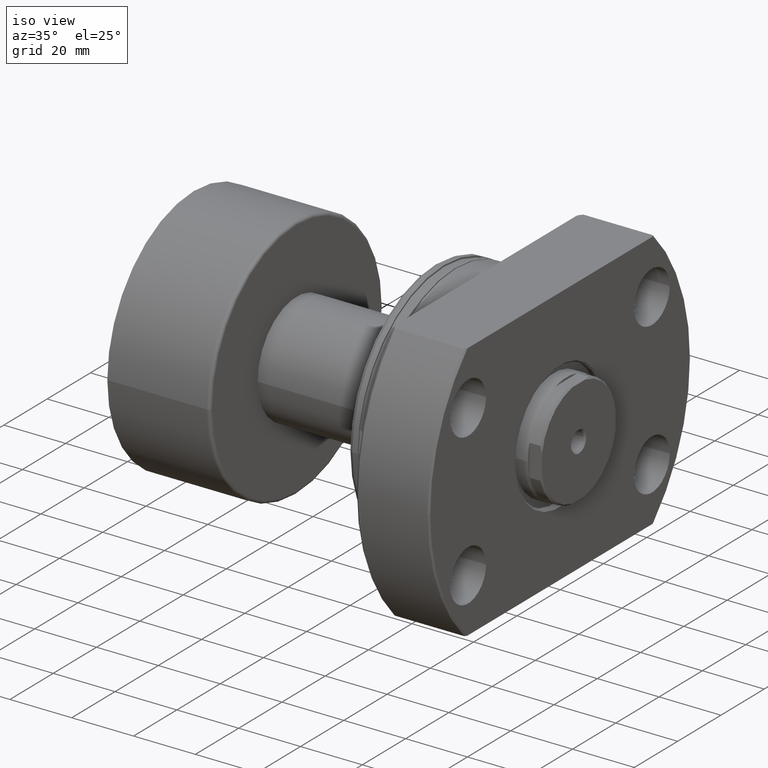
[diagram: clean part render]
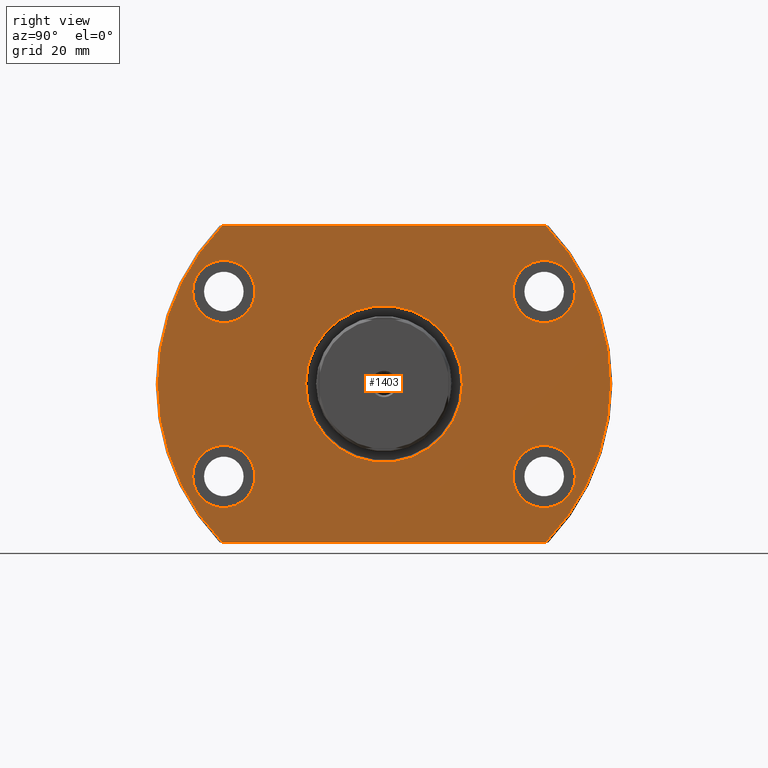
[diagram: tour spotlight — one face highlighted and labeled with its STEP entity id]
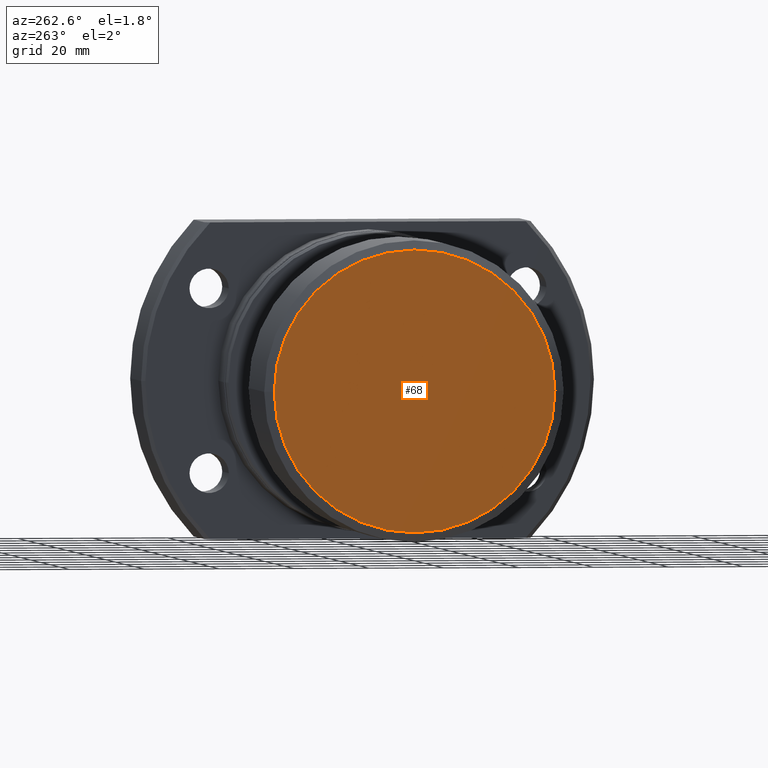
[diagram: tour spotlight — one face highlighted and labeled with its STEP entity id]
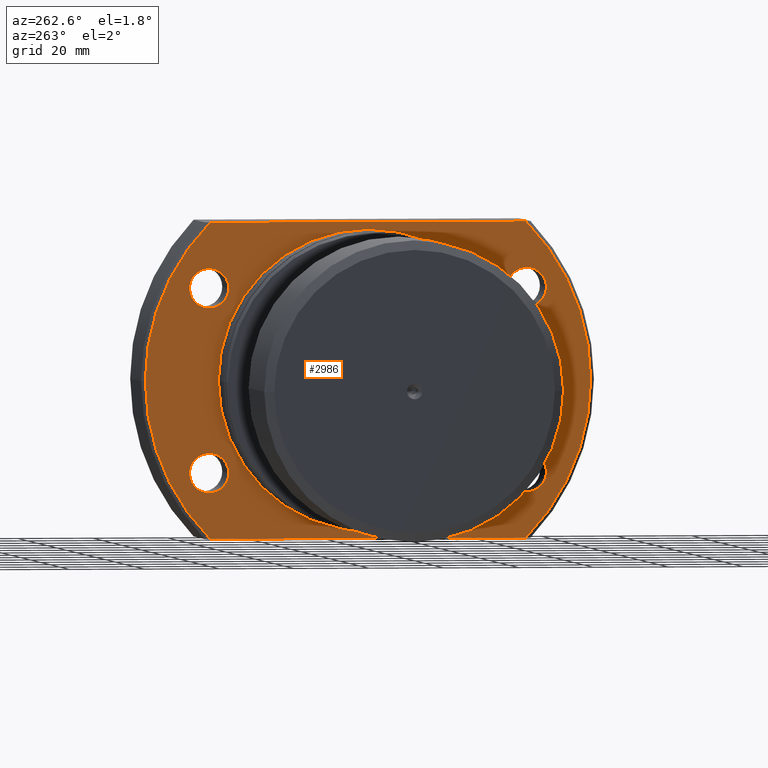
[diagram: tour spotlight — one face highlighted and labeled with its STEP entity id]
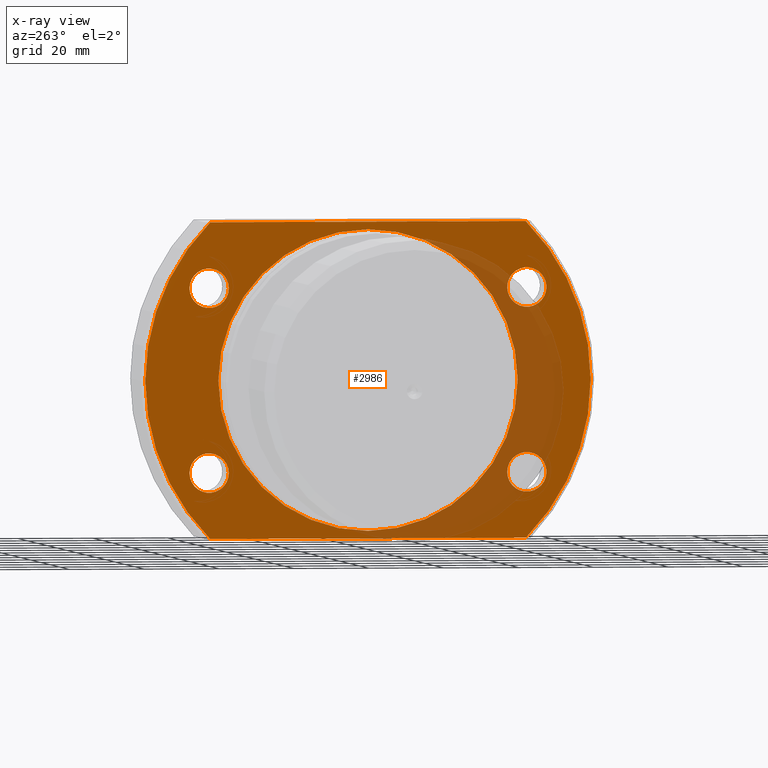
[diagram: x-ray of the same camera — body ghosted, this tour face saturated]
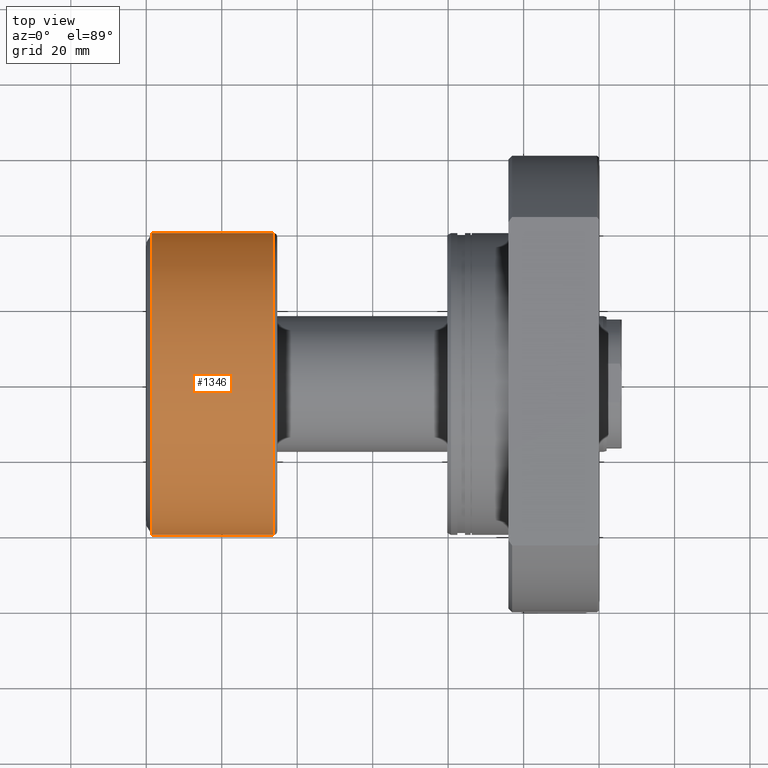
[diagram: tour spotlight — one face highlighted and labeled with its STEP entity id]
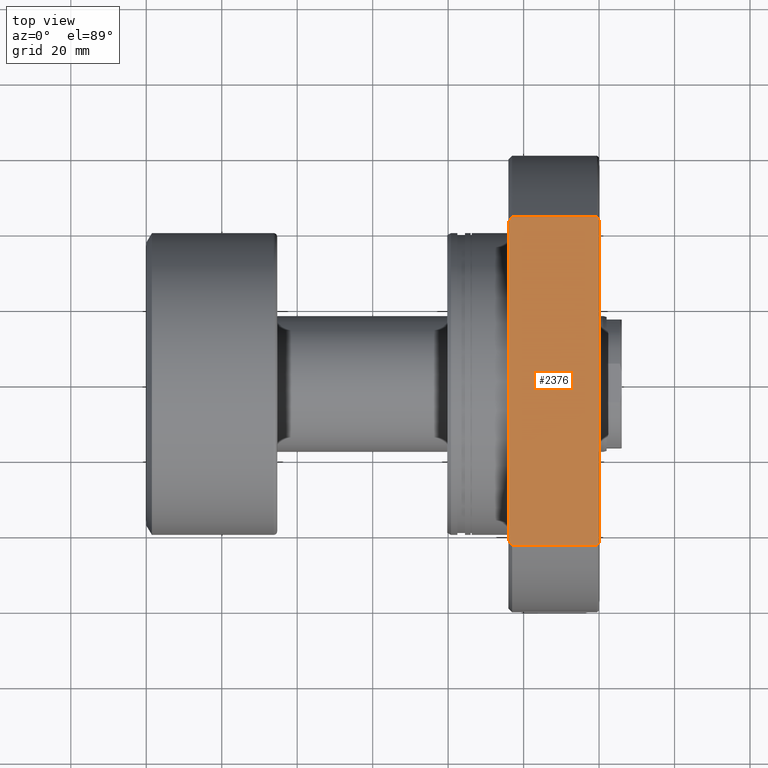
[diagram: tour spotlight — one face highlighted and labeled with its STEP entity id]
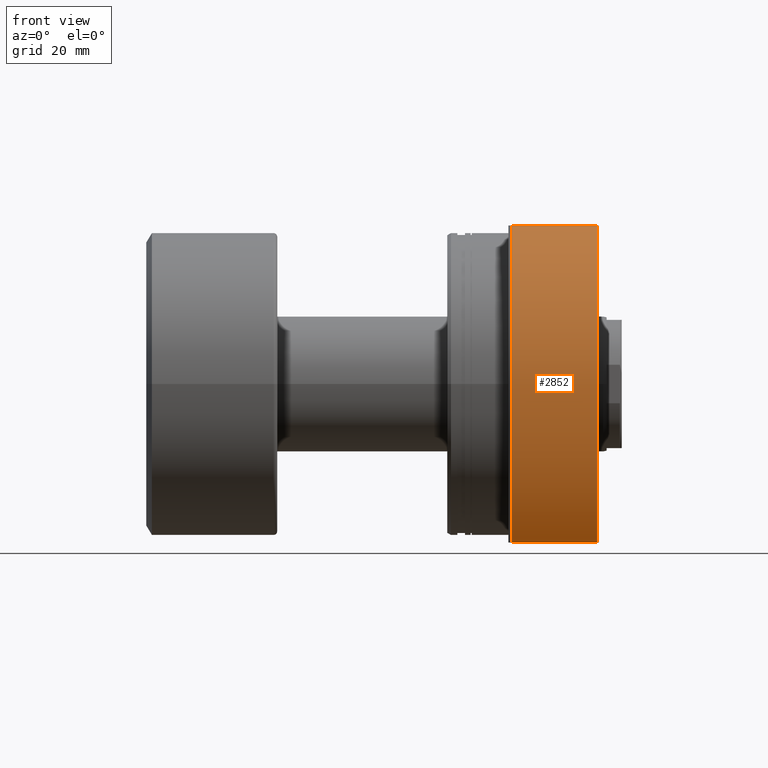
[diagram: tour spotlight — one face highlighted and labeled with its STEP entity id]
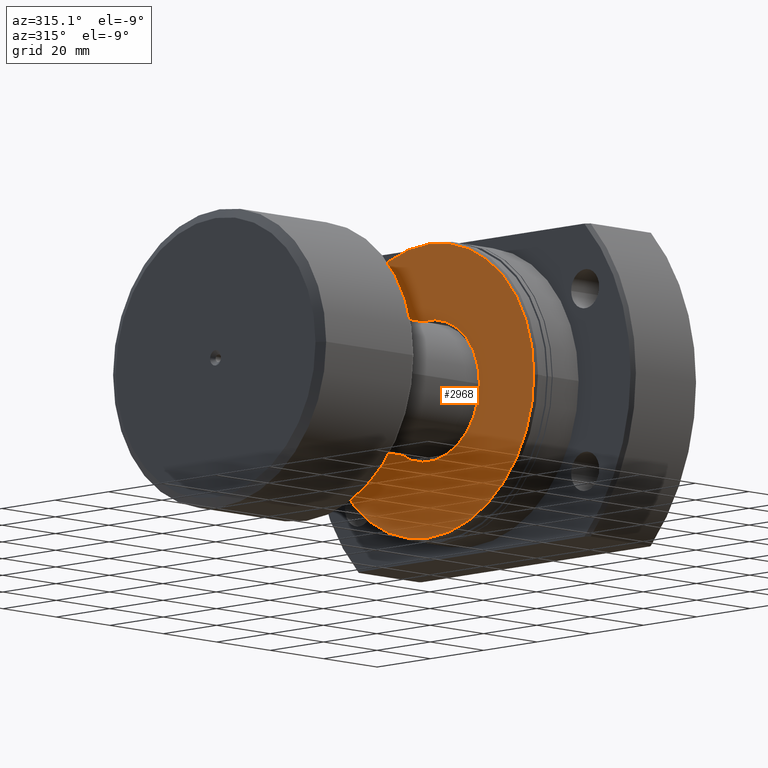
[diagram: tour spotlight — one face highlighted and labeled with its STEP entity id]
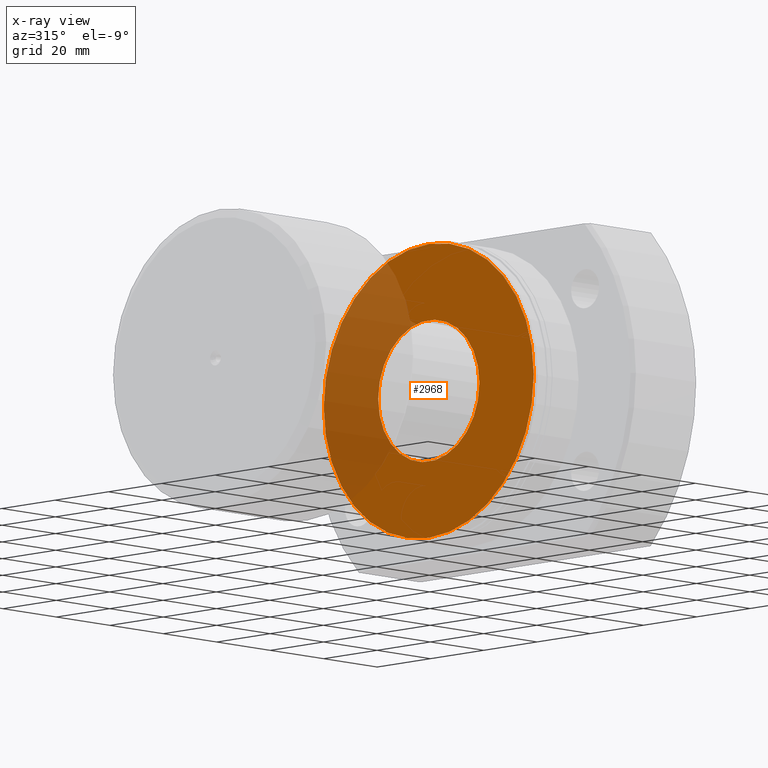
[diagram: x-ray of the same camera — body ghosted, this tour face saturated]
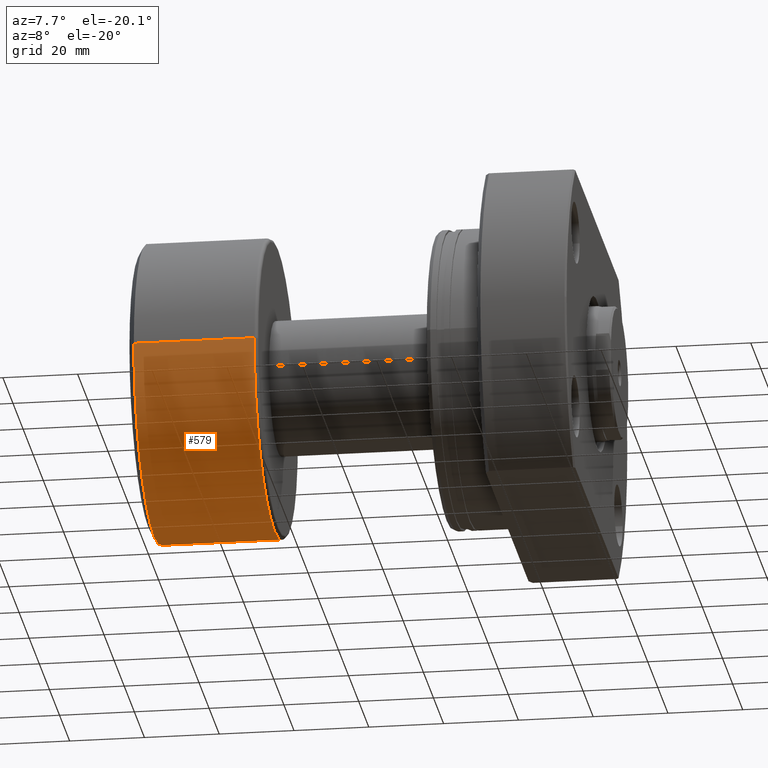
[diagram: tour spotlight — one face highlighted and labeled with its STEP entity id]
A machine part: a face-by-face anatomy tour. The part has 103 B-rep faces; the first image is the clean iso view, then the 8 largest visible faces are spotlighted one at a time (largest first), each with its STEP entity span.

Face 1 — right view, entity #1403. In plain terms, the highlighted planar face has unit normal (-1, -0, 0).
Definition (entity closure, byte-faithful):
#3 = VECTOR ( 'NONE', #1677, 1000.000000000000000 ) ;
#12 = AXIS2_PLACEMENT_3D ( 'NONE', #1807, #2316, #1068 ) ;
#16 = CARTESIAN_POINT ( 'NONE',  ( 40.20000000000000284, 1.922695474661343877E-15, 0.000000000000000000 ) ) ;
#78 = AXIS2_PLACEMENT_3D ( 'NONE', #16, #84, #1059 ) ;
#83 = CARTESIAN_POINT ( 'NONE',  ( 40.20000000000122498, 42.44999999999883755, 24.50000000000000355 ) ) ;
#84 = DIRECTION ( 'NONE',  ( 1.000000000000000000, 4.782824563834189405E-17, -0.000000000000000000 ) ) ;
#92 = VERTEX_POINT ( 'NONE', #2164 ) ;
#139 = ORIENTED_EDGE ( 'NONE', *, *, #3062, .F. ) ;
#152 = CARTESIAN_POINT ( 'NONE',  ( 40.20000000000000284, 43.54595273960703850, 42.00000000000000711 ) ) ;
#180 = ORIENTED_EDGE ( 'NONE', *, *, #1776, .F. ) ;
#185 = ORIENTED_EDGE ( 'NONE', *, *, #890, .T. ) ;
#194 = CARTESIAN_POINT ( 'NONE',  ( 40.20000000000000284, -1.160359376889872993E-12, 0.000000000000000000 ) ) ;
#210 = CARTESIAN_POINT ( 'NONE',  ( 40.20000000000000284, 42.84857057125708479, 42.00000000000000711 ) ) ;
#217 = ORIENTED_EDGE ( 'NONE', *, *, #2673, .T. ) ;
#267 = FACE_BOUND ( 'NONE', #804, .T. ) ;
#294 = ORIENTED_EDGE ( 'NONE', *, *, #1938, .F. ) ;
#303 = FACE_BOUND ( 'NONE', #2604, .T. ) ;
#377 = CIRCLE ( 'NONE', #3193, 8.250000000000007105 ) ;
#452 = VERTEX_POINT ( 'NONE', #1932 ) ;
#457 = ORIENTED_EDGE ( 'NONE', *, *, #1916, .F. ) ;
#499 = DIRECTION ( 'NONE',  ( 2.859665366458733885E-14, 1.000000000000000000, 0.000000000000000000 ) ) ;
#504 = EDGE_CURVE ( 'NONE', #1164, #1594, #669, .T. ) ;
#509 = PLANE ( 'NONE',  #2402 ) ;
#592 = DIRECTION ( 'NONE',  ( 0.000000000000000000, 1.000000000000000000, 0.000000000000000000 ) ) ;
#619 = AXIS2_PLACEMENT_3D ( 'NONE', #1860, #2582, #1082 ) ;
#622 = DIRECTION ( 'NONE',  ( 1.000000000000000000, 4.782824563834189405E-17, -0.000000000000000000 ) ) ;
#669 = LINE ( 'NONE', #152, #3 ) ;
#778 = CIRCLE ( 'NONE', #619, 8.250000000000007105 ) ;
#780 = VERTEX_POINT ( 'NONE', #2577 ) ;
#782 = AXIS2_PLACEMENT_3D ( 'NONE', #3167, #1665, #1472 ) ;
#796 = CARTESIAN_POINT ( 'NONE',  ( 40.19999999999853202, -50.70000000000117524, 24.50000000000000355 ) ) ;
#802 = DIRECTION ( 'NONE',  ( 1.000000000000000000, -2.889302749805715994E-14, -3.155443620884047222E-30 ) ) ;
#804 = EDGE_LOOP ( 'NONE', ( #875, #2418 ) ) ;
#827 = CARTESIAN_POINT ( 'NONE',  ( 40.19999999999900808, -34.20000000000117524, 24.50000000000000355 ) ) ;
#850 = CARTESIAN_POINT ( 'NONE',  ( 40.20000000000000284, -42.84857057125709190, 42.00000000000000711 ) ) ;
#864 = VERTEX_POINT ( 'NONE', #1012 ) ;
#875 = ORIENTED_EDGE ( 'NONE', *, *, #1584, .F. ) ;
#883 = ORIENTED_EDGE ( 'NONE', *, *, #1033, .T. ) ;
#885 = CIRCLE ( 'NONE', #1031, 8.250000000000000000 ) ;
#889 = VECTOR ( 'NONE', #2046, 1000.000000000000000 ) ;
#890 = EDGE_CURVE ( 'NONE', #780, #1698, #1247, .T. ) ;
#934 = CIRCLE ( 'NONE', #782, 20.74999999999876010 ) ;
#973 = ORIENTED_EDGE ( 'NONE', *, *, #1863, .F. ) ;
#981 = CIRCLE ( 'NONE', #2250, 60.00000000000000000 ) ;
#994 = LINE ( 'NONE', #1011, #889 ) ;
#1011 = CARTESIAN_POINT ( 'NONE',  ( 40.20000000000000284, -60.00000000000000000, -42.00000000000000711 ) ) ;
#1012 = CARTESIAN_POINT ( 'NONE',  ( 40.20000000000146656, 50.69999999999883755, 24.50000000000000355 ) ) ;
#1031 = AXIS2_PLACEMENT_3D ( 'NONE', #83, #1105, #1823 ) ;
#1033 = EDGE_CURVE ( 'NONE', #1698, #780, #934, .T. ) ;
#1048 = CARTESIAN_POINT ( 'NONE',  ( 40.20000000000000284, -20.75000000000112266, 2.541142108230753141E-15 ) ) ;
#1059 = DIRECTION ( 'NONE',  ( 0.000000000000000000, 1.000000000000000000, 0.000000000000000000 ) ) ;
#1068 = DIRECTION ( 'NONE',  ( 2.859665366458736410E-14, 1.000000000000000000, 0.000000000000000000 ) ) ;
#1082 = DIRECTION ( 'NONE',  ( 2.859665366458733885E-14, 1.000000000000000000, 0.000000000000000000 ) ) ;
#1105 = DIRECTION ( 'NONE',  ( 1.000000000000000000, -2.886466111666351885E-14, 0.000000000000000000 ) ) ;
#1164 = VERTEX_POINT ( 'NONE', #850 ) ;
#1193 = CIRCLE ( 'NONE', #3012, 8.250000000000007105 ) ;
#1228 = VERTEX_POINT ( 'NONE', #1981 ) ;
#1247 = CIRCLE ( 'NONE', #1948, 20.74999999999876010 ) ;
#1292 = FACE_BOUND ( 'NONE', #2175, .T. ) ;
#1303 = CARTESIAN_POINT ( 'NONE',  ( 40.20000000000000284, 1.922695474661343877E-15, 0.000000000000000000 ) ) ;
#1317 = CARTESIAN_POINT ( 'NONE',  ( 40.19999999999877360, -42.45000000000117524, -24.49999999999999645 ) ) ;
#1350 = VERTEX_POINT ( 'NONE', #796 ) ;
#1369 = ORIENTED_EDGE ( 'NONE', *, *, #504, .F. ) ;
#1403 = ADVANCED_FACE ( 'NONE', ( #303, #1292, #267, #1756, #2727, #2270 ), #509, .F. ) ;
#1472 = DIRECTION ( 'NONE',  ( 0.000000000000000000, -1.000000000000000000, 0.000000000000000000 ) ) ;
#1473 = CIRCLE ( 'NONE', #78, 60.00000000000000000 ) ;
#1492 = CARTESIAN_POINT ( 'NONE',  ( 40.20000000000000284, -60.00000000000000000, 0.000000000000000000 ) ) ;
#1502 = VERTEX_POINT ( 'NONE', #1686 ) ;
#1528 = AXIS2_PLACEMENT_3D ( 'NONE', #1317, #802, #499 ) ;
#1532 = EDGE_CURVE ( 'NONE', #92, #452, #1843, .T. ) ;
#1584 = EDGE_CURVE ( 'NONE', #2466, #1350, #2340, .T. ) ;
#1594 = VERTEX_POINT ( 'NONE', #210 ) ;
#1654 = DIRECTION ( 'NONE',  ( -1.000000000000000000, -4.782824563834189405E-17, 0.000000000000000000 ) ) ;
#1665 = DIRECTION ( 'NONE',  ( -1.000000000000000000, -4.782824563834189405E-17, 0.000000000000000000 ) ) ;
#1677 = DIRECTION ( 'NONE',  ( -0.000000000000000000, 1.000000000000000000, 0.000000000000000000 ) ) ;
#1686 = CARTESIAN_POINT ( 'NONE',  ( 40.20000000000099050, 34.19999999999883045, -24.49999999999999645 ) ) ;
#1698 = VERTEX_POINT ( 'NONE', #1048 ) ;
#1728 = CIRCLE ( 'NONE', #12, 8.250000000000000000 ) ;
#1740 = DIRECTION ( 'NONE',  ( 2.859665366458733885E-14, 1.000000000000000000, 0.000000000000000000 ) ) ;
#1756 = FACE_BOUND ( 'NONE', #2368, .T. ) ;
#1760 = DIRECTION ( 'NONE',  ( 1.000000000000000000, -2.889302749805715994E-14, -3.155443620884047222E-30 ) ) ;
#1776 = EDGE_CURVE ( 'NONE', #1502, #2480, #1193, .T. ) ;
#1798 = CIRCLE ( 'NONE', #1528, 8.250000000000007105 ) ;
#1807 = CARTESIAN_POINT ( 'NONE',  ( 40.19999999999877360, -42.45000000000117524, 24.50000000000000355 ) ) ;
#1823 = DIRECTION ( 'NONE',  ( 2.859665366458736410E-14, 1.000000000000000000, 0.000000000000000000 ) ) ;
#1843 = CIRCLE ( 'NONE', #1944, 60.00000000000000000 ) ;
#1860 = CARTESIAN_POINT ( 'NONE',  ( 40.20000000000122498, 42.44999999999883755, -24.49999999999999645 ) ) ;
#1863 = EDGE_CURVE ( 'NONE', #2122, #864, #2695, .T. ) ;
#1911 = CARTESIAN_POINT ( 'NONE',  ( 40.20000000000099050, 34.19999999999883755, 24.50000000000000355 ) ) ;
#1916 = EDGE_CURVE ( 'NONE', #864, #2122, #885, .T. ) ;
#1928 = DIRECTION ( 'NONE',  ( 0.000000000000000000, -1.000000000000000000, 0.000000000000000000 ) ) ;
#1932 = CARTESIAN_POINT ( 'NONE',  ( 40.20000000000000284, -42.84857057125708479, -42.00000000000000711 ) ) ;
#1938 = EDGE_CURVE ( 'NONE', #2480, #1502, #778, .T. ) ;
#1944 = AXIS2_PLACEMENT_3D ( 'NONE', #1303, #2790, #2902 ) ;
#1948 = AXIS2_PLACEMENT_3D ( 'NONE', #194, #1654, #1928 ) ;
#1981 = CARTESIAN_POINT ( 'NONE',  ( 40.19999999999900808, -34.20000000000116813, -24.49999999999999645 ) ) ;
#2030 = DIRECTION ( 'NONE',  ( 2.859665366458736410E-14, 1.000000000000000000, 0.000000000000000000 ) ) ;
#2046 = DIRECTION ( 'NONE',  ( -4.782824563834189405E-17, 1.000000000000000000, -0.000000000000000000 ) ) ;
#2122 = VERTEX_POINT ( 'NONE', #1911 ) ;
#2164 = CARTESIAN_POINT ( 'NONE',  ( 40.20000000000000284, -60.00000000000000000, 0.000000000000000000 ) ) ;
#2175 = EDGE_LOOP ( 'NONE', ( #457, #973 ) ) ;
#2194 = VERTEX_POINT ( 'NONE', #2469 ) ;
#2224 = CARTESIAN_POINT ( 'NONE',  ( 40.20000000000122498, 42.44999999999883755, -24.49999999999999645 ) ) ;
#2250 = AXIS2_PLACEMENT_3D ( 'NONE', #2622, #622, #592 ) ;
#2270 = FACE_OUTER_BOUND ( 'NONE', #2871, .T. ) ;
#2276 = DIRECTION ( 'NONE',  ( 2.859665366458733885E-14, 1.000000000000000000, 0.000000000000000000 ) ) ;
#2289 = DIRECTION ( 'NONE',  ( 1.000000000000000000, -2.889302749805715994E-14, -3.155443620884047222E-30 ) ) ;
#2316 = DIRECTION ( 'NONE',  ( 1.000000000000000000, -2.889302749805715994E-14, -3.155443620884047222E-30 ) ) ;
#2320 = DIRECTION ( 'NONE',  ( 1.000000000000000000, -2.889302749805715994E-14, -3.155443620884047222E-30 ) ) ;
#2340 = CIRCLE ( 'NONE', #2511, 8.250000000000000000 ) ;
#2342 = DIRECTION ( 'NONE',  ( 2.859665366458736410E-14, 1.000000000000000000, 0.000000000000000000 ) ) ;
#2368 = EDGE_LOOP ( 'NONE', ( #2765, #139 ) ) ;
#2395 = CARTESIAN_POINT ( 'NONE',  ( 40.19999999999877360, -42.45000000000117524, -24.49999999999999645 ) ) ;
#2402 = AXIS2_PLACEMENT_3D ( 'NONE', #1492, #2763, #2482 ) ;
#2418 = ORIENTED_EDGE ( 'NONE', *, *, #2462, .F. ) ;
#2450 = AXIS2_PLACEMENT_3D ( 'NONE', #2730, #2486, #2030 ) ;
#2462 = EDGE_CURVE ( 'NONE', #1350, #2466, #1728, .T. ) ;
#2466 = VERTEX_POINT ( 'NONE', #827 ) ;
#2469 = CARTESIAN_POINT ( 'NONE',  ( 40.19999999999853202, -50.70000000000118234, -24.49999999999999645 ) ) ;
#2480 = VERTEX_POINT ( 'NONE', #3075 ) ;
#2482 = DIRECTION ( 'NONE',  ( 4.782824563834189405E-17, -1.000000000000000000, 0.000000000000000000 ) ) ;
#2486 = DIRECTION ( 'NONE',  ( 1.000000000000000000, -2.886466111666351885E-14, 0.000000000000000000 ) ) ;
#2511 = AXIS2_PLACEMENT_3D ( 'NONE', #2706, #2320, #2342 ) ;
#2534 = ORIENTED_EDGE ( 'NONE', *, *, #3200, .T. ) ;
#2577 = CARTESIAN_POINT ( 'NONE',  ( 40.20000000000000284, 20.74999999999760547, 0.000000000000000000 ) ) ;
#2582 = DIRECTION ( 'NONE',  ( 1.000000000000000000, -2.889302749805715994E-14, -3.155443620884047222E-30 ) ) ;
#2595 = VERTEX_POINT ( 'NONE', #3165 ) ;
#2604 = EDGE_LOOP ( 'NONE', ( #185, #883 ) ) ;
#2622 = CARTESIAN_POINT ( 'NONE',  ( 40.20000000000000284, 1.922695474661343877E-15, 0.000000000000000000 ) ) ;
#2651 = EDGE_CURVE ( 'NONE', #1228, #2194, #377, .T. ) ;
#2673 = EDGE_CURVE ( 'NONE', #452, #2595, #994, .T. ) ;
#2691 = ORIENTED_EDGE ( 'NONE', *, *, #2883, .T. ) ;
#2695 = CIRCLE ( 'NONE', #2450, 8.250000000000000000 ) ;
#2706 = CARTESIAN_POINT ( 'NONE',  ( 40.19999999999877360, -42.45000000000117524, 24.50000000000000355 ) ) ;
#2727 = FACE_BOUND ( 'NONE', #3039, .T. ) ;
#2730 = CARTESIAN_POINT ( 'NONE',  ( 40.20000000000122498, 42.44999999999883755, 24.50000000000000355 ) ) ;
#2763 = DIRECTION ( 'NONE',  ( -1.000000000000000000, -4.782824563834189405E-17, 0.000000000000000000 ) ) ;
#2765 = ORIENTED_EDGE ( 'NONE', *, *, #2651, .F. ) ;
#2790 = DIRECTION ( 'NONE',  ( 1.000000000000000000, 4.782824563834189405E-17, -0.000000000000000000 ) ) ;
#2871 = EDGE_LOOP ( 'NONE', ( #1369, #2691, #2877, #217, #2534 ) ) ;
#2877 = ORIENTED_EDGE ( 'NONE', *, *, #1532, .T. ) ;
#2883 = EDGE_CURVE ( 'NONE', #1164, #92, #981, .T. ) ;
#2902 = DIRECTION ( 'NONE',  ( 0.000000000000000000, 1.000000000000000000, 0.000000000000000000 ) ) ;
#3012 = AXIS2_PLACEMENT_3D ( 'NONE', #2224, #1760, #1740 ) ;
#3039 = EDGE_LOOP ( 'NONE', ( #294, #180 ) ) ;
#3062 = EDGE_CURVE ( 'NONE', #2194, #1228, #1798, .T. ) ;
#3075 = CARTESIAN_POINT ( 'NONE',  ( 40.20000000000146656, 50.69999999999884466, -24.49999999999999645 ) ) ;
#3165 = CARTESIAN_POINT ( 'NONE',  ( 40.20000000000000284, 42.84857057125709190, -42.00000000000000711 ) ) ;
#3167 = CARTESIAN_POINT ( 'NONE',  ( 40.20000000000000284, -1.160359376889872993E-12, 0.000000000000000000 ) ) ;
#3193 = AXIS2_PLACEMENT_3D ( 'NONE', #2395, #2289, #2276 ) ;
#3200 = EDGE_CURVE ( 'NONE', #2595, #1594, #1473, .T. ) ;

Face 2 — auxiliary view, entity #68. In plain terms, the highlighted planar face has unit normal (-1, -0, 0).
Definition (entity closure, byte-faithful):
#68 = ADVANCED_FACE ( 'NONE', ( #2087, #2283 ), #3055, .T. ) ;
#163 = VERTEX_POINT ( 'NONE', #1270 ) ;
#225 = VERTEX_POINT ( 'NONE', #3197 ) ;
#312 = DIRECTION ( 'NONE',  ( 1.069542322069070885E-17, -1.000000000000000000, 0.000000000000000000 ) ) ;
#336 = DIRECTION ( 'NONE',  ( 1.000000000000000000, 1.069542322069065801E-17, 0.000000000000000000 ) ) ;
#467 = AXIS2_PLACEMENT_3D ( 'NONE', #1599, #2547, #1338 ) ;
#521 = EDGE_CURVE ( 'NONE', #163, #1189, #2291, .T. ) ;
#596 = CARTESIAN_POINT ( 'NONE',  ( 2.095673563013336780E-15, 0.000000000000000000, 0.000000000000000000 ) ) ;
#604 = ORIENTED_EDGE ( 'NONE', *, *, #2770, .T. ) ;
#626 = CIRCLE ( 'NONE', #1624, 2.075000000000007283 ) ;
#690 = EDGE_LOOP ( 'NONE', ( #1547, #604 ) ) ;
#791 = CARTESIAN_POINT ( 'NONE',  ( 2.095673563013336780E-15, 0.000000000000000000, 0.000000000000000000 ) ) ;
#929 = AXIS2_PLACEMENT_3D ( 'NONE', #2709, #995, #3214 ) ;
#995 = DIRECTION ( 'NONE',  ( -1.000000000000000000, -1.069542322069065801E-17, -0.000000000000000000 ) ) ;
#1090 = CIRCLE ( 'NONE', #2006, 2.075000000000007283 ) ;
#1129 = DIRECTION ( 'NONE',  ( 1.069542322069066725E-17, -1.000000000000000000, 0.000000000000000000 ) ) ;
#1153 = DIRECTION ( 'NONE',  ( -1.000000000000000000, -1.069542322069065801E-17, -0.000000000000000000 ) ) ;
#1178 = EDGE_LOOP ( 'NONE', ( #3118, #3000 ) ) ;
#1189 = VERTEX_POINT ( 'NONE', #3146 ) ;
#1270 = CARTESIAN_POINT ( 'NONE',  ( 3.790268755250773542E-15, 37.49999999999999289, 0.000000000000000000 ) ) ;
#1338 = DIRECTION ( 'NONE',  ( 1.069542322069065801E-17, -1.000000000000000000, 0.000000000000000000 ) ) ;
#1547 = ORIENTED_EDGE ( 'NONE', *, *, #2460, .T. ) ;
#1570 = CIRCLE ( 'NONE', #2003, 37.49999999999999289 ) ;
#1599 = CARTESIAN_POINT ( 'NONE',  ( 2.095673563013336780E-15, 2.241411568884037022E-32, 0.000000000000000000 ) ) ;
#1609 = VERTEX_POINT ( 'NONE', #1645 ) ;
#1624 = AXIS2_PLACEMENT_3D ( 'NONE', #596, #336, #2073 ) ;
#1645 = CARTESIAN_POINT ( 'NONE',  ( 2.095673563013336780E-15, 0.000000000000000000, 2.075000000000007283 ) ) ;
#1804 = DIRECTION ( 'NONE',  ( 1.000000000000000000, 1.069542322069065801E-17, 0.000000000000000000 ) ) ;
#1885 = CARTESIAN_POINT ( 'NONE',  ( 4.191347126026673560E-15, 4.482823137768074044E-32, 0.000000000000000000 ) ) ;
#2003 = AXIS2_PLACEMENT_3D ( 'NONE', #1885, #1153, #1129 ) ;
#2006 = AXIS2_PLACEMENT_3D ( 'NONE', #791, #1804, #312 ) ;
#2073 = DIRECTION ( 'NONE',  ( 1.069542322069070885E-17, -1.000000000000000000, 0.000000000000000000 ) ) ;
#2087 = FACE_BOUND ( 'NONE', #690, .T. ) ;
#2283 = FACE_OUTER_BOUND ( 'NONE', #1178, .T. ) ;
#2291 = CIRCLE ( 'NONE', #929, 37.49999999999999289 ) ;
#2460 = EDGE_CURVE ( 'NONE', #1609, #225, #626, .T. ) ;
#2499 = EDGE_CURVE ( 'NONE', #1189, #163, #1570, .T. ) ;
#2547 = DIRECTION ( 'NONE',  ( -1.000000000000000000, -1.069542322069065801E-17, 0.000000000000000000 ) ) ;
#2709 = CARTESIAN_POINT ( 'NONE',  ( 4.191347126026673560E-15, 4.482823137768074044E-32, 0.000000000000000000 ) ) ;
#2770 = EDGE_CURVE ( 'NONE', #225, #1609, #1090, .T. ) ;
#3000 = ORIENTED_EDGE ( 'NONE', *, *, #2499, .T. ) ;
#3055 = PLANE ( 'NONE',  #467 ) ;
#3118 = ORIENTED_EDGE ( 'NONE', *, *, #521, .T. ) ;
#3146 = CARTESIAN_POINT ( 'NONE',  ( 4.592425496802573578E-15, -37.49999999999999289, 4.745506346695992513E-15 ) ) ;
#3197 = CARTESIAN_POINT ( 'NONE',  ( 2.095673563013336780E-15, 2.541142108230766946E-16, -2.075000000000007283 ) ) ;
#3214 = DIRECTION ( 'NONE',  ( 1.069542322069066725E-17, -1.000000000000000000, 0.000000000000000000 ) ) ;

Face 3 — auxiliary view, entity #2986. An x-ray twin of the same camera follows (body ghosted, this face saturated) — the face is partly hidden behind the body. In plain terms, the highlighted planar face has unit normal (1, 0, 0).
Definition (entity closure, byte-faithful):
#15 = EDGE_CURVE ( 'NONE', #2428, #1362, #567, .T. ) ;
#31 = CARTESIAN_POINT ( 'NONE',  ( 16.20000000000000284, 42.44999999999953388, -24.49999999999999645 ) ) ;
#35 = CARTESIAN_POINT ( 'NONE',  ( 16.20000000000000284, 7.748175793411387157E-16, 0.000000000000000000 ) ) ;
#36 = DIRECTION ( 'NONE',  ( 1.000000000000000000, 4.782824563834189405E-17, -0.000000000000000000 ) ) ;
#64 = DIRECTION ( 'NONE',  ( 1.000000000000000000, 4.782824563834189405E-17, -0.000000000000000000 ) ) ;
#72 = CIRCLE ( 'NONE', #674, 39.99999999999999289 ) ;
#75 = AXIS2_PLACEMENT_3D ( 'NONE', #2031, #2077, #2718 ) ;
#106 = VERTEX_POINT ( 'NONE', #2422 ) ;
#124 = CARTESIAN_POINT ( 'NONE',  ( 16.20000000000000639, -47.70000000000047180, -24.49999999999999645 ) ) ;
#134 = ORIENTED_EDGE ( 'NONE', *, *, #1123, .T. ) ;
#188 = VERTEX_POINT ( 'NONE', #2688 ) ;
#235 = VERTEX_POINT ( 'NONE', #945 ) ;
#241 = FACE_BOUND ( 'NONE', #734, .T. ) ;
#281 = EDGE_LOOP ( 'NONE', ( #2238, #2121 ) ) ;
#315 = AXIS2_PLACEMENT_3D ( 'NONE', #2457, #36, #1479 ) ;
#323 = CARTESIAN_POINT ( 'NONE',  ( 16.20000000000000284, 42.44999999999953388, 24.50000000000000355 ) ) ;
#349 = EDGE_CURVE ( 'NONE', #2406, #1266, #671, .T. ) ;
#422 = FACE_BOUND ( 'NONE', #450, .T. ) ;
#438 = CARTESIAN_POINT ( 'NONE',  ( 16.20000000000000639, -39.99999999999999289, -42.00000000000000711 ) ) ;
#450 = EDGE_LOOP ( 'NONE', ( #1566, #1128 ) ) ;
#459 = EDGE_LOOP ( 'NONE', ( #1140, #2872, #1054, #1623, #858 ) ) ;
#466 = EDGE_CURVE ( 'NONE', #1861, #597, #1996, .T. ) ;
#485 = ORIENTED_EDGE ( 'NONE', *, *, #1487, .T. ) ;
#567 = CIRCLE ( 'NONE', #315, 5.249999999999997335 ) ;
#574 = VECTOR ( 'NONE', #2781, 1000.000000000000000 ) ;
#585 = DIRECTION ( 'NONE',  ( 0.000000000000000000, 1.000000000000000000, 0.000000000000000000 ) ) ;
#588 = DIRECTION ( 'NONE',  ( 1.000000000000000000, 4.782824563834189405E-17, -0.000000000000000000 ) ) ;
#597 = VERTEX_POINT ( 'NONE', #1368 ) ;
#611 = ORIENTED_EDGE ( 'NONE', *, *, #15, .T. ) ;
#658 = CARTESIAN_POINT ( 'NONE',  ( 16.20000000000000639, -42.45000000000047180, 24.50000000000000355 ) ) ;
#671 = CIRCLE ( 'NONE', #3013, 5.249999999999997335 ) ;
#674 = AXIS2_PLACEMENT_3D ( 'NONE', #1388, #2603, #2892 ) ;
#681 = DIRECTION ( 'NONE',  ( 1.000000000000000000, 4.782824563834189405E-17, -0.000000000000000000 ) ) ;
#714 = LINE ( 'NONE', #438, #574 ) ;
#722 = DIRECTION ( 'NONE',  ( 0.000000000000000000, 1.000000000000000000, 0.000000000000000000 ) ) ;
#734 = EDGE_LOOP ( 'NONE', ( #134, #2223 ) ) ;
#828 = DIRECTION ( 'NONE',  ( 1.000000000000000000, 4.782824563834189405E-17, -0.000000000000000000 ) ) ;
#858 = ORIENTED_EDGE ( 'NONE', *, *, #466, .F. ) ;
#877 = DIRECTION ( 'NONE',  ( 0.000000000000000000, 1.000000000000000000, 0.000000000000000000 ) ) ;
#879 = EDGE_LOOP ( 'NONE', ( #1640, #485 ) ) ;
#925 = FACE_BOUND ( 'NONE', #281, .T. ) ;
#945 = CARTESIAN_POINT ( 'NONE',  ( 16.19999999999999929, 42.14558102577294108, 42.00000000000000711 ) ) ;
#996 = VERTEX_POINT ( 'NONE', #2435 ) ;
#1008 = CARTESIAN_POINT ( 'NONE',  ( 16.19999999999999929, 39.99999999999999289, 0.000000000000000000 ) ) ;
#1034 = CARTESIAN_POINT ( 'NONE',  ( 16.20000000000000639, -47.70000000000047180, 24.50000000000000355 ) ) ;
#1047 = CIRCLE ( 'NONE', #2617, 5.249999999999997335 ) ;
#1054 = ORIENTED_EDGE ( 'NONE', *, *, #2869, .F. ) ;
#1067 = CARTESIAN_POINT ( 'NONE',  ( 16.20000000000000639, -39.99999999999999289, 42.00000000000000711 ) ) ;
#1123 = EDGE_CURVE ( 'NONE', #1480, #106, #72, .T. ) ;
#1128 = ORIENTED_EDGE ( 'NONE', *, *, #1990, .T. ) ;
#1134 = EDGE_CURVE ( 'NONE', #1169, #597, #714, .T. ) ;
#1137 = AXIS2_PLACEMENT_3D ( 'NONE', #3163, #1903, #2112 ) ;
#1140 = ORIENTED_EDGE ( 'NONE', *, *, #1543, .F. ) ;
#1160 = DIRECTION ( 'NONE',  ( -4.782824563834189405E-17, 1.000000000000000000, 0.000000000000000000 ) ) ;
#1169 = VERTEX_POINT ( 'NONE', #2609 ) ;
#1234 = CARTESIAN_POINT ( 'NONE',  ( 16.20000000000000284, 37.19999999999954099, 24.50000000000000355 ) ) ;
#1266 = VERTEX_POINT ( 'NONE', #124 ) ;
#1362 = VERTEX_POINT ( 'NONE', #1234 ) ;
#1368 = CARTESIAN_POINT ( 'NONE',  ( 16.20000000000000639, -42.14558102577294108, -42.00000000000000711 ) ) ;
#1388 = CARTESIAN_POINT ( 'NONE',  ( 16.20000000000000284, 7.748175793411387157E-16, 0.000000000000000000 ) ) ;
#1452 = EDGE_CURVE ( 'NONE', #1266, #2406, #1669, .T. ) ;
#1466 = AXIS2_PLACEMENT_3D ( 'NONE', #31, #2057, #722 ) ;
#1471 = CIRCLE ( 'NONE', #75, 59.49999999999994316 ) ;
#1479 = DIRECTION ( 'NONE',  ( 0.000000000000000000, 1.000000000000000000, 0.000000000000000000 ) ) ;
#1480 = VERTEX_POINT ( 'NONE', #1008 ) ;
#1487 = EDGE_CURVE ( 'NONE', #996, #2498, #1514, .T. ) ;
#1496 = CARTESIAN_POINT ( 'NONE',  ( 16.20000000000000639, -42.14558102577294108, 42.00000000000000711 ) ) ;
#1514 = CIRCLE ( 'NONE', #2096, 5.249999999999997335 ) ;
#1543 = EDGE_CURVE ( 'NONE', #235, #1861, #1688, .T. ) ;
#1545 = DIRECTION ( 'NONE',  ( 1.000000000000000000, 4.782824563834189405E-17, -0.000000000000000000 ) ) ;
#1566 = ORIENTED_EDGE ( 'NONE', *, *, #2593, .T. ) ;
#1612 = CARTESIAN_POINT ( 'NONE',  ( 16.20000000000000639, -37.20000000000047891, -24.49999999999999645 ) ) ;
#1623 = ORIENTED_EDGE ( 'NONE', *, *, #1134, .T. ) ;
#1629 = CIRCLE ( 'NONE', #2612, 5.249999999999997335 ) ;
#1640 = ORIENTED_EDGE ( 'NONE', *, *, #2314, .T. ) ;
#1669 = CIRCLE ( 'NONE', #2105, 5.249999999999997335 ) ;
#1680 = VECTOR ( 'NONE', #2379, 1000.000000000000000 ) ;
#1688 = LINE ( 'NONE', #1067, #1680 ) ;
#1754 = DIRECTION ( 'NONE',  ( 0.000000000000000000, 1.000000000000000000, 0.000000000000000000 ) ) ;
#1769 = DIRECTION ( 'NONE',  ( 1.000000000000000000, 4.782824563834189405E-17, -0.000000000000000000 ) ) ;
#1844 = CARTESIAN_POINT ( 'NONE',  ( 16.20000000000000639, -42.45000000000047180, 24.50000000000000355 ) ) ;
#1861 = VERTEX_POINT ( 'NONE', #1496 ) ;
#1903 = DIRECTION ( 'NONE',  ( 1.000000000000000000, 4.782824563834189405E-17, -0.000000000000000000 ) ) ;
#1990 = EDGE_CURVE ( 'NONE', #2309, #188, #2396, .T. ) ;
#1996 = CIRCLE ( 'NONE', #1137, 59.49999999999994316 ) ;
#2031 = CARTESIAN_POINT ( 'NONE',  ( 16.20000000000000284, 7.748175793411387157E-16, 0.000000000000000000 ) ) ;
#2057 = DIRECTION ( 'NONE',  ( 1.000000000000000000, 4.782824563834189405E-17, -0.000000000000000000 ) ) ;
#2062 = CIRCLE ( 'NONE', #2919, 39.99999999999999289 ) ;
#2077 = DIRECTION ( 'NONE',  ( 1.000000000000000000, 4.782824563834189405E-17, -0.000000000000000000 ) ) ;
#2086 = CARTESIAN_POINT ( 'NONE',  ( 16.20000000000000284, 47.69999999999953388, 24.50000000000000355 ) ) ;
#2096 = AXIS2_PLACEMENT_3D ( 'NONE', #3041, #828, #585 ) ;
#2105 = AXIS2_PLACEMENT_3D ( 'NONE', #2990, #1769, #2742 ) ;
#2112 = DIRECTION ( 'NONE',  ( -5.831003280594314730E-17, 1.000000000000000000, 0.000000000000000000 ) ) ;
#2121 = ORIENTED_EDGE ( 'NONE', *, *, #1452, .T. ) ;
#2134 = ORIENTED_EDGE ( 'NONE', *, *, #3182, .T. ) ;
#2172 = DIRECTION ( 'NONE',  ( 1.000000000000000000, 4.782824563834189405E-17, -0.000000000000000000 ) ) ;
#2177 = DIRECTION ( 'NONE',  ( 1.000000000000000000, 4.782824563834189405E-17, -0.000000000000000000 ) ) ;
#2189 = CARTESIAN_POINT ( 'NONE',  ( 16.20000000000000639, -42.45000000000047180, -24.49999999999999645 ) ) ;
#2215 = VERTEX_POINT ( 'NONE', #2234 ) ;
#2223 = ORIENTED_EDGE ( 'NONE', *, *, #3179, .T. ) ;
#2234 = CARTESIAN_POINT ( 'NONE',  ( 16.19999999999999929, 59.49999999999994316, 0.000000000000000000 ) ) ;
#2238 = ORIENTED_EDGE ( 'NONE', *, *, #349, .T. ) ;
#2308 = DIRECTION ( 'NONE',  ( 0.000000000000000000, 1.000000000000000000, 0.000000000000000000 ) ) ;
#2309 = VERTEX_POINT ( 'NONE', #1034 ) ;
#2314 = EDGE_CURVE ( 'NONE', #2498, #996, #2853, .T. ) ;
#2379 = DIRECTION ( 'NONE',  ( 4.782824563834189405E-17, -1.000000000000000000, 0.000000000000000000 ) ) ;
#2396 = CIRCLE ( 'NONE', #2653, 5.249999999999997335 ) ;
#2406 = VERTEX_POINT ( 'NONE', #1612 ) ;
#2422 = CARTESIAN_POINT ( 'NONE',  ( 16.20000000000000639, -39.99999999999999289, 4.898587196589412237E-15 ) ) ;
#2428 = VERTEX_POINT ( 'NONE', #2086 ) ;
#2429 = FACE_BOUND ( 'NONE', #2830, .T. ) ;
#2435 = CARTESIAN_POINT ( 'NONE',  ( 16.20000000000000284, 37.19999999999954099, -24.49999999999999645 ) ) ;
#2456 = FACE_BOUND ( 'NONE', #879, .T. ) ;
#2457 = CARTESIAN_POINT ( 'NONE',  ( 16.20000000000000284, 42.44999999999953388, 24.50000000000000355 ) ) ;
#2473 = PLANE ( 'NONE',  #3076 ) ;
#2478 = CARTESIAN_POINT ( 'NONE',  ( 16.20000000000000284, 47.69999999999953388, -24.49999999999999645 ) ) ;
#2498 = VERTEX_POINT ( 'NONE', #2478 ) ;
#2537 = DIRECTION ( 'NONE',  ( -8.673617379884036705E-17, 1.000000000000000000, 0.000000000000000000 ) ) ;
#2562 = AXIS2_PLACEMENT_3D ( 'NONE', #2631, #3104, #2870 ) ;
#2593 = EDGE_CURVE ( 'NONE', #188, #2309, #1629, .T. ) ;
#2603 = DIRECTION ( 'NONE',  ( 1.000000000000000000, 4.782824563834189405E-17, -0.000000000000000000 ) ) ;
#2609 = CARTESIAN_POINT ( 'NONE',  ( 16.19999999999999929, 42.14558102577294108, -42.00000000000000711 ) ) ;
#2612 = AXIS2_PLACEMENT_3D ( 'NONE', #658, #2177, #2854 ) ;
#2617 = AXIS2_PLACEMENT_3D ( 'NONE', #323, #64, #2308 ) ;
#2631 = CARTESIAN_POINT ( 'NONE',  ( 16.20000000000000284, 7.748175793411387157E-16, 0.000000000000000000 ) ) ;
#2653 = AXIS2_PLACEMENT_3D ( 'NONE', #1844, #588, #877 ) ;
#2674 = FACE_OUTER_BOUND ( 'NONE', #459, .T. ) ;
#2688 = CARTESIAN_POINT ( 'NONE',  ( 16.20000000000000639, -37.20000000000047891, 24.50000000000000355 ) ) ;
#2718 = DIRECTION ( 'NONE',  ( -5.831003280594314730E-17, 1.000000000000000000, 0.000000000000000000 ) ) ;
#2742 = DIRECTION ( 'NONE',  ( 0.000000000000000000, 1.000000000000000000, 0.000000000000000000 ) ) ;
#2757 = CIRCLE ( 'NONE', #2562, 59.49999999999994316 ) ;
#2781 = DIRECTION ( 'NONE',  ( 4.782824563834189405E-17, -1.000000000000000000, 0.000000000000000000 ) ) ;
#2830 = EDGE_LOOP ( 'NONE', ( #611, #2134 ) ) ;
#2853 = CIRCLE ( 'NONE', #1466, 5.249999999999997335 ) ;
#2854 = DIRECTION ( 'NONE',  ( 0.000000000000000000, 1.000000000000000000, 0.000000000000000000 ) ) ;
#2869 = EDGE_CURVE ( 'NONE', #1169, #2215, #2757, .T. ) ;
#2870 = DIRECTION ( 'NONE',  ( -5.831003280594314730E-17, 1.000000000000000000, 0.000000000000000000 ) ) ;
#2872 = ORIENTED_EDGE ( 'NONE', *, *, #3212, .F. ) ;
#2892 = DIRECTION ( 'NONE',  ( -8.673617379884036705E-17, 1.000000000000000000, 0.000000000000000000 ) ) ;
#2919 = AXIS2_PLACEMENT_3D ( 'NONE', #35, #1545, #2537 ) ;
#2933 = CARTESIAN_POINT ( 'NONE',  ( 16.20000000000000639, -39.99999999999999289, 0.000000000000000000 ) ) ;
#2986 = ADVANCED_FACE ( 'NONE', ( #2429, #422, #925, #2456, #241, #2674 ), #2473, .F. ) ;
#2990 = CARTESIAN_POINT ( 'NONE',  ( 16.20000000000000639, -42.45000000000047180, -24.49999999999999645 ) ) ;
#3013 = AXIS2_PLACEMENT_3D ( 'NONE', #2189, #681, #1754 ) ;
#3041 = CARTESIAN_POINT ( 'NONE',  ( 16.20000000000000284, 42.44999999999953388, -24.49999999999999645 ) ) ;
#3076 = AXIS2_PLACEMENT_3D ( 'NONE', #2933, #2172, #1160 ) ;
#3104 = DIRECTION ( 'NONE',  ( 1.000000000000000000, 4.782824563834189405E-17, -0.000000000000000000 ) ) ;
#3163 = CARTESIAN_POINT ( 'NONE',  ( 16.20000000000000284, 7.748175793411387157E-16, 0.000000000000000000 ) ) ;
#3179 = EDGE_CURVE ( 'NONE', #106, #1480, #2062, .T. ) ;
#3182 = EDGE_CURVE ( 'NONE', #1362, #2428, #1047, .T. ) ;
#3212 = EDGE_CURVE ( 'NONE', #2215, #235, #1471, .T. ) ;

Face 4 — top view, entity #1346. In plain terms, the highlighted cylindrical surface (partial cylindrical patch) has radius 40 mm, axis along (-1, -0, -0).
Definition (entity closure, byte-faithful):
#6 = FACE_OUTER_BOUND ( 'NONE', #1373, .T. ) ;
#25 = DIRECTION ( 'NONE',  ( -1.000000000000000000, -1.069542322069065801E-17, -0.000000000000000000 ) ) ;
#125 = CIRCLE ( 'NONE', #1148, 39.99999999999999289 ) ;
#146 = EDGE_CURVE ( 'NONE', #2793, #2141, #2491, .T. ) ;
#177 = VECTOR ( 'NONE', #944, 1000.000000000000000 ) ;
#560 = ORIENTED_EDGE ( 'NONE', *, *, #2999, .T. ) ;
#632 = DIRECTION ( 'NONE',  ( -1.000000000000000000, -1.069542322069065801E-17, -0.000000000000000000 ) ) ;
#644 = CARTESIAN_POINT ( 'NONE',  ( 1.500000000000004663, 1.604313483103603400E-17, 0.000000000000000000 ) ) ;
#724 = AXIS2_PLACEMENT_3D ( 'NONE', #1278, #1524, #3028 ) ;
#785 = CARTESIAN_POINT ( 'NONE',  ( 1.500000000000004219, 39.99999999999999289, 0.000000000000000000 ) ) ;
#811 = VERTEX_POINT ( 'NONE', #785 ) ;
#919 = DIRECTION ( 'NONE',  ( 1.084202172485504588E-17, -1.000000000000000000, 0.000000000000000000 ) ) ;
#944 = DIRECTION ( 'NONE',  ( -1.000000000000000000, -1.069542322069065801E-17, -0.000000000000000000 ) ) ;
#1001 = CYLINDRICAL_SURFACE ( 'NONE', #724, 39.99999999999999289 ) ;
#1039 = EDGE_CURVE ( 'NONE', #2793, #1945, #1087, .T. ) ;
#1087 = CIRCLE ( 'NONE', #2610, 39.99999999999999289 ) ;
#1148 = AXIS2_PLACEMENT_3D ( 'NONE', #644, #632, #919 ) ;
#1215 = ORIENTED_EDGE ( 'NONE', *, *, #2627, .F. ) ;
#1216 = DIRECTION ( 'NONE',  ( -1.000000000000000000, -1.069542322069065801E-17, -0.000000000000000000 ) ) ;
#1245 = CARTESIAN_POINT ( 'NONE',  ( 4.278169288276262587E-16, -39.99999999999999289, 0.000000000000000000 ) ) ;
#1278 = CARTESIAN_POINT ( 'NONE',  ( 0.000000000000000000, 0.000000000000000000, 0.000000000000000000 ) ) ;
#1321 = CARTESIAN_POINT ( 'NONE',  ( 33.70000000000000284, -39.99999999999999289, 0.000000000000000000 ) ) ;
#1346 = ADVANCED_FACE ( 'NONE', ( #6 ), #1001, .T. ) ;
#1373 = EDGE_LOOP ( 'NONE', ( #1610, #560, #1215, #2646 ) ) ;
#1453 = LINE ( 'NONE', #2197, #177 ) ;
#1524 = DIRECTION ( 'NONE',  ( -1.000000000000000000, -1.069542322069065801E-17, -0.000000000000000000 ) ) ;
#1610 = ORIENTED_EDGE ( 'NONE', *, *, #1039, .T. ) ;
#1945 = VERTEX_POINT ( 'NONE', #3100 ) ;
#2141 = VERTEX_POINT ( 'NONE', #2928 ) ;
#2197 = CARTESIAN_POINT ( 'NONE',  ( -4.278169288276262587E-16, 39.99999999999999289, 4.898587196589412237E-15 ) ) ;
#2468 = CARTESIAN_POINT ( 'NONE',  ( 33.70000000000000284, 3.604357625372751759E-16, 0.000000000000000000 ) ) ;
#2491 = LINE ( 'NONE', #1245, #2744 ) ;
#2610 = AXIS2_PLACEMENT_3D ( 'NONE', #2468, #1216, #2681 ) ;
#2627 = EDGE_CURVE ( 'NONE', #2141, #811, #125, .T. ) ;
#2646 = ORIENTED_EDGE ( 'NONE', *, *, #146, .F. ) ;
#2681 = DIRECTION ( 'NONE',  ( 0.000000000000000000, -1.000000000000000000, 0.000000000000000000 ) ) ;
#2744 = VECTOR ( 'NONE', #25, 1000.000000000000000 ) ;
#2793 = VERTEX_POINT ( 'NONE', #1321 ) ;
#2928 = CARTESIAN_POINT ( 'NONE',  ( 1.500000000000005107, -39.99999999999999289, 4.898587196589412237E-15 ) ) ;
#2999 = EDGE_CURVE ( 'NONE', #1945, #811, #1453, .T. ) ;
#3028 = DIRECTION ( 'NONE',  ( 1.069542322069065801E-17, -1.000000000000000000, 0.000000000000000000 ) ) ;
#3100 = CARTESIAN_POINT ( 'NONE',  ( 33.70000000000000284, 39.99999999999999289, 4.898587196589412237E-15 ) ) ;

Face 5 — top view, entity #2376. In plain terms, the highlighted planar face has unit normal (0, 0, 1).
Definition (entity closure, byte-faithful):
#3 = VECTOR ( 'NONE', #1677, 1000.000000000000000 ) ;
#43 = CARTESIAN_POINT ( 'NONE',  ( -4.857225732735059864E-13, 43.54595273960703139, 42.00000000000000000 ) ) ;
#44 = CARTESIAN_POINT ( 'NONE',  ( 16.53144698496875975, -42.61350898229063233, 42.00000000000000711 ) ) ;
#71 = ORIENTED_EDGE ( 'NONE', *, *, #1237, .T. ) ;
#152 = CARTESIAN_POINT ( 'NONE',  ( 40.20000000000000284, 43.54595273960703850, 42.00000000000000711 ) ) ;
#182 = ORIENTED_EDGE ( 'NONE', *, *, #1575, .T. ) ;
#198 = VERTEX_POINT ( 'NONE', #1847 ) ;
#210 = CARTESIAN_POINT ( 'NONE',  ( 40.20000000000000284, 42.84857057125708479, 42.00000000000000711 ) ) ;
#232 = B_SPLINE_CURVE_WITH_KNOTS ( 'NONE', 3,
 ( #1183, #2346, #1250, #2650 ),
 .UNSPECIFIED., .F., .F.,
 ( 4, 4 ),
 ( 0.1639571914734299363, 0.1648217309186877921 ),
 .UNSPECIFIED. ) ;
#235 = VERTEX_POINT ( 'NONE', #945 ) ;
#332 = ORIENTED_EDGE ( 'NONE', *, *, #504, .T. ) ;
#359 = CARTESIAN_POINT ( 'NONE',  ( -4.857225732735059864E-13, 43.54595273960703850, 42.00000000000000711 ) ) ;
#470 = CARTESIAN_POINT ( 'NONE',  ( 40.20000000000000284, -42.84857057125709190, 42.00000000000000711 ) ) ;
#477 = DIRECTION ( 'NONE',  ( 1.000000000000000000, -2.886466111666351885E-14, -0.000000000000000000 ) ) ;
#504 = EDGE_CURVE ( 'NONE', #1164, #1594, #669, .T. ) ;
#524 = CARTESIAN_POINT ( 'NONE',  ( 16.20000000000000639, -42.14558102577294108, 42.00000000000000711 ) ) ;
#589 = LINE ( 'NONE', #1185, #2354 ) ;
#642 = EDGE_LOOP ( 'NONE', ( #2005, #3142, #1259, #182, #1097, #332, #71, #1511 ) ) ;
#669 = LINE ( 'NONE', #152, #3 ) ;
#705 = EDGE_CURVE ( 'NONE', #1984, #1164, #1589, .T. ) ;
#850 = CARTESIAN_POINT ( 'NONE',  ( 40.20000000000000284, -42.84857057125709190, 42.00000000000000711 ) ) ;
#945 = CARTESIAN_POINT ( 'NONE',  ( 16.19999999999999929, 42.14558102577294108, 42.00000000000000711 ) ) ;
#1067 = CARTESIAN_POINT ( 'NONE',  ( 16.20000000000000639, -39.99999999999999289, 42.00000000000000711 ) ) ;
#1097 = ORIENTED_EDGE ( 'NONE', *, *, #705, .T. ) ;
#1164 = VERTEX_POINT ( 'NONE', #850 ) ;
#1183 = CARTESIAN_POINT ( 'NONE',  ( 40.20000000000000284, 42.84857057125708479, 42.00000000000000711 ) ) ;
#1185 = CARTESIAN_POINT ( 'NONE',  ( -2.997602166487922659E-12, -43.54595273960473634, 42.00000000000000711 ) ) ;
#1237 = EDGE_CURVE ( 'NONE', #1594, #1979, #232, .T. ) ;
#1250 = CARTESIAN_POINT ( 'NONE',  ( 39.86712069734446828, 43.31376578414314338, 42.00000000000000711 ) ) ;
#1259 = ORIENTED_EDGE ( 'NONE', *, *, #1459, .T. ) ;
#1261 = B_SPLINE_CURVE_WITH_KNOTS ( 'NONE', 3,
 ( #2625, #2893, #2721, #2875 ),
 .UNSPECIFIED., .F., .F.,
 ( 4, 4 ),
 ( 0.06843084807226254562, 0.07015410504178032358 ),
 .UNSPECIFIED. ) ;
#1430 = CARTESIAN_POINT ( 'NONE',  ( 39.70000000000009521, -43.54595273960588031, 42.00000000000000711 ) ) ;
#1443 = CARTESIAN_POINT ( 'NONE',  ( 40.03376598237901618, -43.08134475541972108, 42.00000000000000711 ) ) ;
#1459 = EDGE_CURVE ( 'NONE', #1861, #1880, #2590, .T. ) ;
#1496 = CARTESIAN_POINT ( 'NONE',  ( 16.20000000000000639, -42.14558102577294108, 42.00000000000000711 ) ) ;
#1511 = ORIENTED_EDGE ( 'NONE', *, *, #2205, .F. ) ;
#1543 = EDGE_CURVE ( 'NONE', #235, #1861, #1688, .T. ) ;
#1553 = DIRECTION ( 'NONE',  ( 1.000000000000000000, 0.000000000000000000, -0.000000000000000000 ) ) ;
#1575 = EDGE_CURVE ( 'NONE', #1880, #1984, #589, .T. ) ;
#1589 = B_SPLINE_CURVE_WITH_KNOTS ( 'NONE', 3,
 ( #1430, #3155, #1443, #470 ),
 .UNSPECIFIED., .F., .F.,
 ( 4, 4 ),
 ( 0.06842734416309766143, 0.06928669907482794266 ),
 .UNSPECIFIED. ) ;
#1590 = CARTESIAN_POINT ( 'NONE',  ( 39.70000000000009521, 43.54595273960588742, 42.00000000000000000 ) ) ;
#1594 = VERTEX_POINT ( 'NONE', #210 ) ;
#1677 = DIRECTION ( 'NONE',  ( -0.000000000000000000, 1.000000000000000000, 0.000000000000000000 ) ) ;
#1680 = VECTOR ( 'NONE', #2379, 1000.000000000000000 ) ;
#1688 = LINE ( 'NONE', #1067, #1680 ) ;
#1847 = CARTESIAN_POINT ( 'NONE',  ( 17.19999999999998153, 43.54595273960653401, 42.00000000000000000 ) ) ;
#1861 = VERTEX_POINT ( 'NONE', #1496 ) ;
#1880 = VERTEX_POINT ( 'NONE', #2961 ) ;
#1979 = VERTEX_POINT ( 'NONE', #1590 ) ;
#1984 = VERTEX_POINT ( 'NONE', #2569 ) ;
#2005 = ORIENTED_EDGE ( 'NONE', *, *, #2584, .T. ) ;
#2100 = VECTOR ( 'NONE', #477, 1000.000000000000000 ) ;
#2165 = DIRECTION ( 'NONE',  ( 1.000000000000000000, -2.886466111666351885E-14, -0.000000000000000000 ) ) ;
#2205 = EDGE_CURVE ( 'NONE', #198, #1979, #2693, .T. ) ;
#2212 = CARTESIAN_POINT ( 'NONE',  ( 16.86482042041076923, -43.08027537375727434, 42.00000000000000711 ) ) ;
#2294 = AXIS2_PLACEMENT_3D ( 'NONE', #359, #3053, #1553 ) ;
#2346 = CARTESIAN_POINT ( 'NONE',  ( 40.03379223298939849, 43.08130799721281079, 42.00000000000000711 ) ) ;
#2354 = VECTOR ( 'NONE', #2165, 1000.000000000000000 ) ;
#2376 = ADVANCED_FACE ( 'NONE', ( #2544 ), #3040, .T. ) ;
#2379 = DIRECTION ( 'NONE',  ( 4.782824563834189405E-17, -1.000000000000000000, 0.000000000000000000 ) ) ;
#2544 = FACE_OUTER_BOUND ( 'NONE', #642, .T. ) ;
#2569 = CARTESIAN_POINT ( 'NONE',  ( 39.70000000000009521, -43.54595273960588031, 42.00000000000000711 ) ) ;
#2584 = EDGE_CURVE ( 'NONE', #198, #235, #1261, .T. ) ;
#2590 = B_SPLINE_CURVE_WITH_KNOTS ( 'NONE', 3,
 ( #524, #44, #2212, #3173 ),
 .UNSPECIFIED., .F., .F.,
 ( 4, 4 ),
 ( 0.1630913217281463323, 0.1648252527028310765 ),
 .UNSPECIFIED. ) ;
#2625 = CARTESIAN_POINT ( 'NONE',  ( 17.19999999999998153, 43.54595273960653401, 42.00000000000000000 ) ) ;
#2650 = CARTESIAN_POINT ( 'NONE',  ( 39.70000000000009521, 43.54595273960588742, 42.00000000000000000 ) ) ;
#2693 = LINE ( 'NONE', #43, #2100 ) ;
#2721 = CARTESIAN_POINT ( 'NONE',  ( 16.53155433190906365, 42.61366053181949809, 42.00000000000000711 ) ) ;
#2875 = CARTESIAN_POINT ( 'NONE',  ( 16.19999999999999929, 42.14558102577294108, 42.00000000000000711 ) ) ;
#2893 = CARTESIAN_POINT ( 'NONE',  ( 16.86492660039202462, 43.08042289352574983, 42.00000000000000711 ) ) ;
#2961 = CARTESIAN_POINT ( 'NONE',  ( 17.19999999999998153, -43.54595273960523372, 42.00000000000000711 ) ) ;
#3040 = PLANE ( 'NONE',  #2294 ) ;
#3053 = DIRECTION ( 'NONE',  ( 0.000000000000000000, 0.000000000000000000, 1.000000000000000000 ) ) ;
#3142 = ORIENTED_EDGE ( 'NONE', *, *, #1543, .T. ) ;
#3155 = CARTESIAN_POINT ( 'NONE',  ( 39.86709459080174867, -43.31380205492686031, 42.00000000000000711 ) ) ;
#3173 = CARTESIAN_POINT ( 'NONE',  ( 17.19999999999998153, -43.54595273960523372, 42.00000000000000711 ) ) ;

Face 6 — front view, entity #2852. In plain terms, the highlighted cylindrical surface (partial cylindrical patch) has radius 60.5 mm, axis along (1, 0, 0).
Definition (entity closure, byte-faithful):
#196 = EDGE_CURVE ( 'NONE', #2143, #2125, #3125, .T. ) ;
#224 = ORIENTED_EDGE ( 'NONE', *, *, #1980, .T. ) ;
#229 = DIRECTION ( 'NONE',  ( 0.000000000000000000, 1.000000000000000000, 0.000000000000000000 ) ) ;
#286 = CARTESIAN_POINT ( 'NONE',  ( 17.19999999999998153, -43.54595273960524793, -41.99999999999999289 ) ) ;
#363 = DIRECTION ( 'NONE',  ( 1.000000000000000000, 4.782824563834189405E-17, -0.000000000000000000 ) ) ;
#589 = LINE ( 'NONE', #1185, #2354 ) ;
#803 = EDGE_CURVE ( 'NONE', #1984, #2143, #1467, .T. ) ;
#805 = ORIENTED_EDGE ( 'NONE', *, *, #196, .F. ) ;
#819 = DIRECTION ( 'NONE',  ( 1.000000000000000000, 4.782824563834189405E-17, -0.000000000000000000 ) ) ;
#863 = CARTESIAN_POINT ( 'NONE',  ( 17.19999999999998508, 8.226458249794798825E-16, 0.000000000000000000 ) ) ;
#1022 = CARTESIAN_POINT ( 'NONE',  ( -2.997602166487922659E-12, -43.54595273960475055, -41.99999999999999289 ) ) ;
#1070 = DIRECTION ( 'NONE',  ( -5.734623061080362048E-17, 1.000000000000000000, 0.000000000000000000 ) ) ;
#1071 = CARTESIAN_POINT ( 'NONE',  ( 40.20000000000000284, 1.922695474661343877E-15, 0.000000000000000000 ) ) ;
#1157 = EDGE_CURVE ( 'NONE', #1441, #2125, #1281, .T. ) ;
#1185 = CARTESIAN_POINT ( 'NONE',  ( -2.997602166487922659E-12, -43.54595273960473634, 42.00000000000000711 ) ) ;
#1281 = LINE ( 'NONE', #1022, #1789 ) ;
#1301 = AXIS2_PLACEMENT_3D ( 'NONE', #2263, #819, #2594 ) ;
#1400 = DIRECTION ( 'NONE',  ( 1.000000000000000000, 4.782824563834189405E-17, -0.000000000000000000 ) ) ;
#1441 = VERTEX_POINT ( 'NONE', #286 ) ;
#1467 = CIRCLE ( 'NONE', #2554, 60.49999999999991473 ) ;
#1567 = AXIS2_PLACEMENT_3D ( 'NONE', #863, #363, #1070 ) ;
#1573 = AXIS2_PLACEMENT_3D ( 'NONE', #1071, #1400, #2094 ) ;
#1575 = EDGE_CURVE ( 'NONE', #1880, #1984, #589, .T. ) ;
#1656 = ORIENTED_EDGE ( 'NONE', *, *, #1575, .F. ) ;
#1789 = VECTOR ( 'NONE', #3007, 1000.000000000000000 ) ;
#1834 = CIRCLE ( 'NONE', #1567, 60.49999999999991473 ) ;
#1851 = CYLINDRICAL_SURFACE ( 'NONE', #1573, 60.49999999999991473 ) ;
#1880 = VERTEX_POINT ( 'NONE', #2961 ) ;
#1980 = EDGE_CURVE ( 'NONE', #1880, #1441, #1834, .T. ) ;
#1984 = VERTEX_POINT ( 'NONE', #2569 ) ;
#2094 = DIRECTION ( 'NONE',  ( 0.000000000000000000, 1.000000000000000000, 0.000000000000000000 ) ) ;
#2125 = VERTEX_POINT ( 'NONE', #2637 ) ;
#2143 = VERTEX_POINT ( 'NONE', #2944 ) ;
#2165 = DIRECTION ( 'NONE',  ( 1.000000000000000000, -2.886466111666351885E-14, -0.000000000000000000 ) ) ;
#2198 = CARTESIAN_POINT ( 'NONE',  ( 39.70000000000009521, 1.898781351842177780E-15, 0.000000000000000000 ) ) ;
#2263 = CARTESIAN_POINT ( 'NONE',  ( 39.70000000000009521, 1.898781351842177780E-15, 0.000000000000000000 ) ) ;
#2354 = VECTOR ( 'NONE', #2165, 1000.000000000000000 ) ;
#2378 = ORIENTED_EDGE ( 'NONE', *, *, #803, .F. ) ;
#2390 = FACE_OUTER_BOUND ( 'NONE', #3128, .T. ) ;
#2492 = ORIENTED_EDGE ( 'NONE', *, *, #1157, .T. ) ;
#2554 = AXIS2_PLACEMENT_3D ( 'NONE', #2198, #2934, #229 ) ;
#2569 = CARTESIAN_POINT ( 'NONE',  ( 39.70000000000009521, -43.54595273960588031, 42.00000000000000711 ) ) ;
#2594 = DIRECTION ( 'NONE',  ( 0.000000000000000000, 1.000000000000000000, 0.000000000000000000 ) ) ;
#2637 = CARTESIAN_POINT ( 'NONE',  ( 39.70000000000009521, -43.54595273960589452, -41.99999999999999289 ) ) ;
#2852 = ADVANCED_FACE ( 'NONE', ( #2390 ), #1851, .T. ) ;
#2934 = DIRECTION ( 'NONE',  ( 1.000000000000000000, 4.782824563834189405E-17, -0.000000000000000000 ) ) ;
#2944 = CARTESIAN_POINT ( 'NONE',  ( 39.70000000000009521, -60.49999999999991473, 0.000000000000000000 ) ) ;
#2961 = CARTESIAN_POINT ( 'NONE',  ( 17.19999999999998153, -43.54595273960523372, 42.00000000000000711 ) ) ;
#3007 = DIRECTION ( 'NONE',  ( 1.000000000000000000, -2.886466111666351885E-14, -0.000000000000000000 ) ) ;
#3125 = CIRCLE ( 'NONE', #1301, 60.49999999999991473 ) ;
#3128 = EDGE_LOOP ( 'NONE', ( #1656, #224, #2492, #805, #2378 ) ) ;

Face 7 — auxiliary view, entity #2968. An x-ray twin of the same camera follows (body ghosted, this face saturated) — the face is partly hidden behind the body. In plain terms, the highlighted planar face has unit normal (1, 0, 0).
Definition (entity closure, byte-faithful):
#19 = CIRCLE ( 'NONE', #176, 39.42264973081037027 ) ;
#66 = AXIS2_PLACEMENT_3D ( 'NONE', #2365, #2823, #1820 ) ;
#176 = AXIS2_PLACEMENT_3D ( 'NONE', #1527, #252, #462 ) ;
#252 = DIRECTION ( 'NONE',  ( 1.000000000000000000, 4.782824563834189405E-17, -0.000000000000000000 ) ) ;
#279 = AXIS2_PLACEMENT_3D ( 'NONE', #2702, #1709, #2411 ) ;
#462 = DIRECTION ( 'NONE',  ( -4.782824563834187556E-17, 1.000000000000000000, 0.000000000000000000 ) ) ;
#752 = ORIENTED_EDGE ( 'NONE', *, *, #1633, .F. ) ;
#781 = AXIS2_PLACEMENT_3D ( 'NONE', #1309, #862, #2301 ) ;
#788 = EDGE_LOOP ( 'NONE', ( #752, #3094 ) ) ;
#860 = VERTEX_POINT ( 'NONE', #997 ) ;
#862 = DIRECTION ( 'NONE',  ( 1.000000000000000000, 4.782824563834189405E-17, -0.000000000000000000 ) ) ;
#997 = CARTESIAN_POINT ( 'NONE',  ( 5.053377728867717670E-15, 39.42264973081037027, 0.000000000000000000 ) ) ;
#1043 = AXIS2_PLACEMENT_3D ( 'NONE', #2266, #2539, #1064 ) ;
#1064 = DIRECTION ( 'NONE',  ( -4.782824563834189405E-17, 1.000000000000000000, 0.000000000000000000 ) ) ;
#1171 = FACE_BOUND ( 'NONE', #2559, .T. ) ;
#1309 = CARTESIAN_POINT ( 'NONE',  ( 6.938893903907228378E-15, 3.851859888774471706E-31, 0.000000000000000000 ) ) ;
#1311 = CIRCLE ( 'NONE', #781, 39.42264973081037027 ) ;
#1327 = CARTESIAN_POINT ( 'NONE',  ( 8.824410078946739874E-15, -39.42264973081037027, 4.863234688631915496E-15 ) ) ;
#1464 = FACE_OUTER_BOUND ( 'NONE', #788, .T. ) ;
#1486 = ORIENTED_EDGE ( 'NONE', *, *, #2358, .T. ) ;
#1518 = VERTEX_POINT ( 'NONE', #2759 ) ;
#1519 = CIRCLE ( 'NONE', #66, 19.00000000000052935 ) ;
#1522 = CIRCLE ( 'NONE', #1043, 19.00000000000052935 ) ;
#1527 = CARTESIAN_POINT ( 'NONE',  ( 6.938893903907228378E-15, 3.851859888774471706E-31, 0.000000000000000000 ) ) ;
#1633 = EDGE_CURVE ( 'NONE', #860, #3222, #19, .T. ) ;
#1709 = DIRECTION ( 'NONE',  ( 1.000000000000000000, 4.782824563834189405E-17, -0.000000000000000000 ) ) ;
#1820 = DIRECTION ( 'NONE',  ( -4.782824563834189405E-17, 1.000000000000000000, 0.000000000000000000 ) ) ;
#2071 = ORIENTED_EDGE ( 'NONE', *, *, #2724, .T. ) ;
#2266 = CARTESIAN_POINT ( 'NONE',  ( 1.471183002817462307E-15, -3.879172424281811273E-29, 0.000000000000000000 ) ) ;
#2301 = DIRECTION ( 'NONE',  ( -4.782824563834187556E-17, 1.000000000000000000, 0.000000000000000000 ) ) ;
#2358 = EDGE_CURVE ( 'NONE', #2878, #1518, #1519, .T. ) ;
#2365 = CARTESIAN_POINT ( 'NONE',  ( 1.471183002817462307E-15, -3.879172424281811273E-29, 0.000000000000000000 ) ) ;
#2411 = DIRECTION ( 'NONE',  ( -4.782824563834189405E-17, 1.000000000000000000, 0.000000000000000000 ) ) ;
#2421 = EDGE_CURVE ( 'NONE', #3222, #860, #1311, .T. ) ;
#2539 = DIRECTION ( 'NONE',  ( 1.000000000000000000, 4.782824563834189405E-17, -0.000000000000000000 ) ) ;
#2559 = EDGE_LOOP ( 'NONE', ( #1486, #2071 ) ) ;
#2702 = CARTESIAN_POINT ( 'NONE',  ( 1.471183002817414384E-15, 7.036410203770473457E-32, 0.000000000000000000 ) ) ;
#2724 = EDGE_CURVE ( 'NONE', #1518, #2878, #1522, .T. ) ;
#2759 = CARTESIAN_POINT ( 'NONE',  ( 6.038212648290587597E-16, 19.00000000000052935, 2.326828918380036051E-15 ) ) ;
#2823 = DIRECTION ( 'NONE',  ( 1.000000000000000000, 4.782824563834189405E-17, -0.000000000000000000 ) ) ;
#2847 = CARTESIAN_POINT ( 'NONE',  ( 2.338544740805865854E-15, -18.99999999999943157, 0.000000000000000000 ) ) ;
#2878 = VERTEX_POINT ( 'NONE', #2847 ) ;
#2968 = ADVANCED_FACE ( 'NONE', ( #1171, #1464 ), #3211, .F. ) ;
#3094 = ORIENTED_EDGE ( 'NONE', *, *, #2421, .F. ) ;
#3211 = PLANE ( 'NONE',  #279 ) ;
#3222 = VERTEX_POINT ( 'NONE', #1327 ) ;

Face 8 — auxiliary view, entity #579. In plain terms, the highlighted cylindrical surface (partial cylindrical patch) has radius 40 mm, axis along (-1, -0, -0).
Definition (entity closure, byte-faithful):
#25 = DIRECTION ( 'NONE',  ( -1.000000000000000000, -1.069542322069065801E-17, -0.000000000000000000 ) ) ;
#146 = EDGE_CURVE ( 'NONE', #2793, #2141, #2491, .T. ) ;
#148 = ORIENTED_EDGE ( 'NONE', *, *, #2999, .F. ) ;
#166 = DIRECTION ( 'NONE',  ( 1.069542322069065801E-17, -1.000000000000000000, 0.000000000000000000 ) ) ;
#177 = VECTOR ( 'NONE', #944, 1000.000000000000000 ) ;
#218 = AXIS2_PLACEMENT_3D ( 'NONE', #3171, #692, #2400 ) ;
#400 = EDGE_LOOP ( 'NONE', ( #148, #2216, #1329, #3116 ) ) ;
#579 = ADVANCED_FACE ( 'NONE', ( #1322 ), #3178, .T. ) ;
#692 = DIRECTION ( 'NONE',  ( -1.000000000000000000, -1.069542322069065801E-17, -0.000000000000000000 ) ) ;
#785 = CARTESIAN_POINT ( 'NONE',  ( 1.500000000000004219, 39.99999999999999289, 0.000000000000000000 ) ) ;
#811 = VERTEX_POINT ( 'NONE', #785 ) ;
#938 = AXIS2_PLACEMENT_3D ( 'NONE', #2687, #1188, #2225 ) ;
#944 = DIRECTION ( 'NONE',  ( -1.000000000000000000, -1.069542322069065801E-17, -0.000000000000000000 ) ) ;
#1188 = DIRECTION ( 'NONE',  ( -1.000000000000000000, -1.069542322069065801E-17, -0.000000000000000000 ) ) ;
#1245 = CARTESIAN_POINT ( 'NONE',  ( 4.278169288276262587E-16, -39.99999999999999289, 0.000000000000000000 ) ) ;
#1321 = CARTESIAN_POINT ( 'NONE',  ( 33.70000000000000284, -39.99999999999999289, 0.000000000000000000 ) ) ;
#1322 = FACE_OUTER_BOUND ( 'NONE', #400, .T. ) ;
#1329 = ORIENTED_EDGE ( 'NONE', *, *, #146, .T. ) ;
#1453 = LINE ( 'NONE', #2197, #177 ) ;
#1620 = CIRCLE ( 'NONE', #218, 39.99999999999999289 ) ;
#1660 = CARTESIAN_POINT ( 'NONE',  ( 0.000000000000000000, 0.000000000000000000, 0.000000000000000000 ) ) ;
#1945 = VERTEX_POINT ( 'NONE', #3100 ) ;
#2093 = EDGE_CURVE ( 'NONE', #811, #2141, #1620, .T. ) ;
#2108 = CIRCLE ( 'NONE', #938, 39.99999999999999289 ) ;
#2141 = VERTEX_POINT ( 'NONE', #2928 ) ;
#2147 = AXIS2_PLACEMENT_3D ( 'NONE', #1660, #2430, #166 ) ;
#2197 = CARTESIAN_POINT ( 'NONE',  ( -4.278169288276262587E-16, 39.99999999999999289, 4.898587196589412237E-15 ) ) ;
#2216 = ORIENTED_EDGE ( 'NONE', *, *, #2994, .T. ) ;
#2225 = DIRECTION ( 'NONE',  ( 0.000000000000000000, -1.000000000000000000, 0.000000000000000000 ) ) ;
#2400 = DIRECTION ( 'NONE',  ( 1.084202172485504588E-17, -1.000000000000000000, 0.000000000000000000 ) ) ;
#2430 = DIRECTION ( 'NONE',  ( -1.000000000000000000, -1.069542322069065801E-17, -0.000000000000000000 ) ) ;
#2491 = LINE ( 'NONE', #1245, #2744 ) ;
#2687 = CARTESIAN_POINT ( 'NONE',  ( 33.70000000000000284, 3.604357625372751759E-16, 0.000000000000000000 ) ) ;
#2744 = VECTOR ( 'NONE', #25, 1000.000000000000000 ) ;
#2793 = VERTEX_POINT ( 'NONE', #1321 ) ;
#2928 = CARTESIAN_POINT ( 'NONE',  ( 1.500000000000005107, -39.99999999999999289, 4.898587196589412237E-15 ) ) ;
#2994 = EDGE_CURVE ( 'NONE', #1945, #2793, #2108, .T. ) ;
#2999 = EDGE_CURVE ( 'NONE', #1945, #811, #1453, .T. ) ;
#3100 = CARTESIAN_POINT ( 'NONE',  ( 33.70000000000000284, 39.99999999999999289, 4.898587196589412237E-15 ) ) ;
#3116 = ORIENTED_EDGE ( 'NONE', *, *, #2093, .F. ) ;
#3171 = CARTESIAN_POINT ( 'NONE',  ( 1.500000000000004663, 1.604313483103603400E-17, 0.000000000000000000 ) ) ;
#3178 = CYLINDRICAL_SURFACE ( 'NONE', #2147, 39.99999999999999289 ) ;